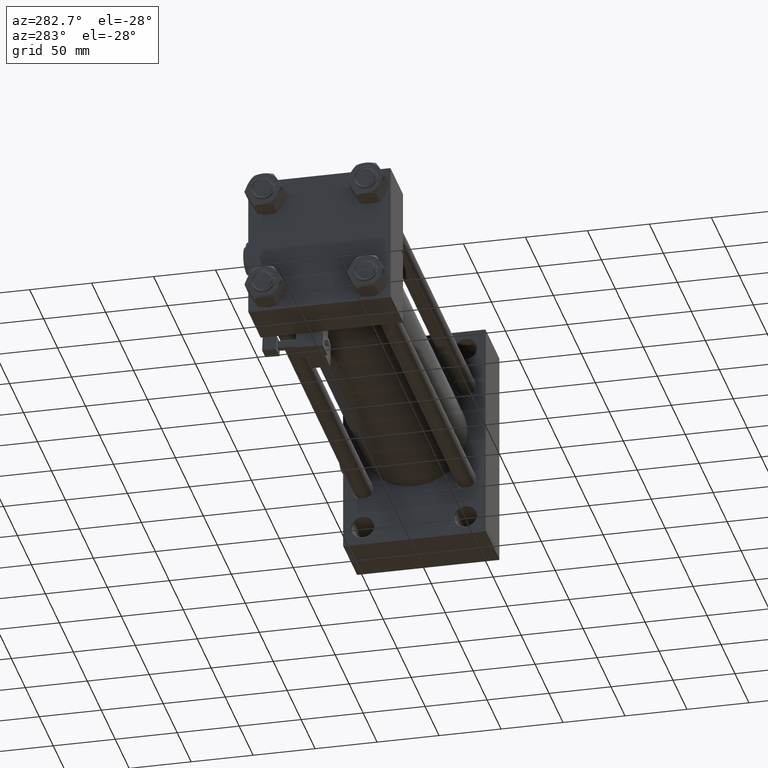
[diagram: clean part render]
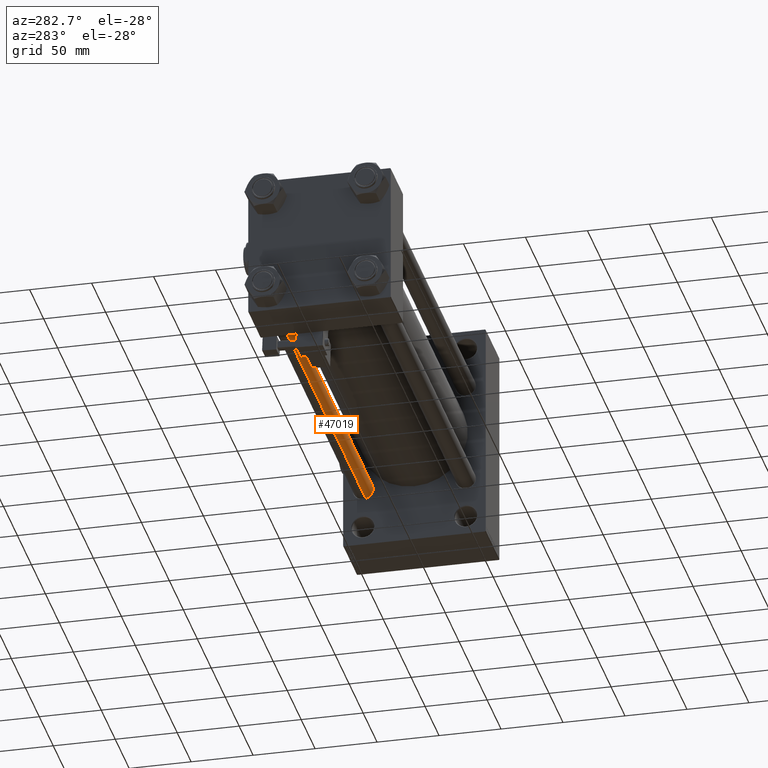
[diagram: same view with one face highlighted and labeled with its STEP entity id]
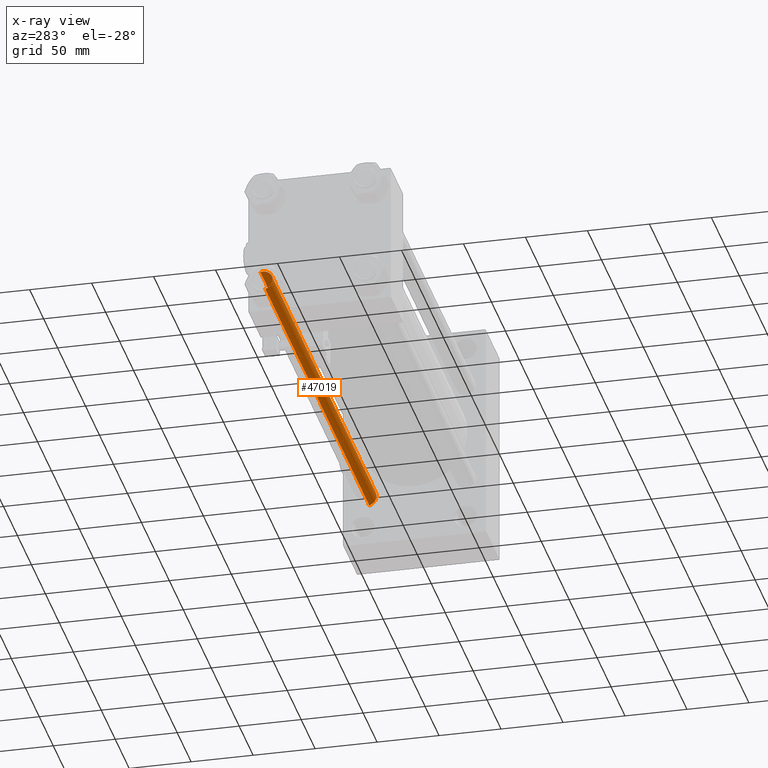
[diagram: x-ray of the same camera — body ghosted, the highlighted face saturated]
A machine part, auxiliary view. The second image highlights one B-rep face of the part: STEP entity #47019.
The next image is the same camera in x-ray: the body ghosted, the highlighted face saturated — about 0% of this face is hidden behind the body in this view.
In plain terms, the highlighted cylindrical surface (edge-blend (fillet) strip) has radius 8 mm, axis along (1, -0, 0).
Its self-contained STEP definition (entity closure, byte-faithful):
#2704 = VERTEX_POINT ( 'NONE', #38650 ) ;
#5696 = DIRECTION ( 'NONE',  ( 0.000000000000000000, 0.000000000000000000, -1.000000000000000000 ) ) ;
#8564 = CARTESIAN_POINT ( 'NONE',  ( 8.000000000000000000, 9.797174393178825657E-16, 0.5000000000000559552 ) ) ;
#8722 = AXIS2_PLACEMENT_3D ( 'NONE', #36798, #53630, #49844 ) ;
#10267 = CARTESIAN_POINT ( 'NONE',  ( 0.000000000000000000, 0.000000000000000000, 372.5000000000000000 ) ) ;
#11916 = LINE ( 'NONE', #50193, #52417 ) ;
#13556 = DIRECTION ( 'NONE',  ( 1.000000000000000000, 0.000000000000000000, 0.000000000000000000 ) ) ;
#13626 = VERTEX_POINT ( 'NONE', #16442 ) ;
#13874 = AXIS2_PLACEMENT_3D ( 'NONE', #16270, #32806, #13556 ) ;
#14128 = CARTESIAN_POINT ( 'NONE',  ( -8.000000000000000000, 0.000000000000000000, 373.0000000000000000 ) ) ;
#14785 = EDGE_LOOP ( 'NONE', ( #45462, #22651, #40371, #37879 ) ) ;
#15991 = DIRECTION ( 'NONE',  ( -0.000000000000000000, -0.000000000000000000, -1.000000000000000000 ) ) ;
#16270 = CARTESIAN_POINT ( 'NONE',  ( 0.000000000000000000, 0.000000000000000000, 0.5000000000000559552 ) ) ;
#16442 = CARTESIAN_POINT ( 'NONE',  ( 8.000000000000000000, 9.797174393178825657E-16, 372.5000000000000000 ) ) ;
#22216 = DIRECTION ( 'NONE',  ( 1.000000000000000000, 0.000000000000000000, 0.000000000000000000 ) ) ;
#22651 = ORIENTED_EDGE ( 'NONE', *, *, #53137, .T. ) ;
#24298 = FACE_OUTER_BOUND ( 'NONE', #14785, .T. ) ;
#24629 = VERTEX_POINT ( 'NONE', #8564 ) ;
#25484 = CIRCLE ( 'NONE', #48010, 8.000000000000000000 ) ;
#26337 = EDGE_CURVE ( 'NONE', #2704, #29840, #27124, .T. ) ;
#27124 = LINE ( 'NONE', #14128, #27909 ) ;
#27718 = CIRCLE ( 'NONE', #13874, 8.000000000000000000 ) ;
#27909 = VECTOR ( 'NONE', #35255, 1000.000000000000000 ) ;
#28368 = CYLINDRICAL_SURFACE ( 'NONE', #8722, 8.000000000000000000 ) ;
#29840 = VERTEX_POINT ( 'NONE', #33753 ) ;
#32806 = DIRECTION ( 'NONE',  ( -0.000000000000000000, -0.000000000000000000, 1.000000000000000000 ) ) ;
#33753 = CARTESIAN_POINT ( 'NONE',  ( -8.000000000000000000, 0.000000000000000000, 0.5000000000000559552 ) ) ;
#34413 = EDGE_CURVE ( 'NONE', #13626, #24629, #11916, .T. ) ;
#35255 = DIRECTION ( 'NONE',  ( -0.000000000000000000, -0.000000000000000000, -1.000000000000000000 ) ) ;
#36798 = CARTESIAN_POINT ( 'NONE',  ( 0.000000000000000000, 0.000000000000000000, 373.0000000000000000 ) ) ;
#37879 = ORIENTED_EDGE ( 'NONE', *, *, #44410, .T. ) ;
#38650 = CARTESIAN_POINT ( 'NONE',  ( -8.000000000000000000, 0.000000000000000000, 372.5000000000000000 ) ) ;
#40371 = ORIENTED_EDGE ( 'NONE', *, *, #26337, .T. ) ;
#44410 = EDGE_CURVE ( 'NONE', #29840, #24629, #27718, .T. ) ;
#45462 = ORIENTED_EDGE ( 'NONE', *, *, #34413, .F. ) ;
#47019 = ADVANCED_FACE ( 'NONE', ( #24298 ), #28368, .T. ) ;
#48010 = AXIS2_PLACEMENT_3D ( 'NONE', #10267, #5696, #22216 ) ;
#49844 = DIRECTION ( 'NONE',  ( -1.000000000000000000, 0.000000000000000000, 0.000000000000000000 ) ) ;
#50193 = CARTESIAN_POINT ( 'NONE',  ( 8.000000000000000000, 9.797174393178825657E-16, 373.0000000000000000 ) ) ;
#52417 = VECTOR ( 'NONE', #15991, 1000.000000000000000 ) ;
#53137 = EDGE_CURVE ( 'NONE', #13626, #2704, #25484, .T. ) ;
#53630 = DIRECTION ( 'NONE',  ( -0.000000000000000000, -0.000000000000000000, -1.000000000000000000 ) ) ;